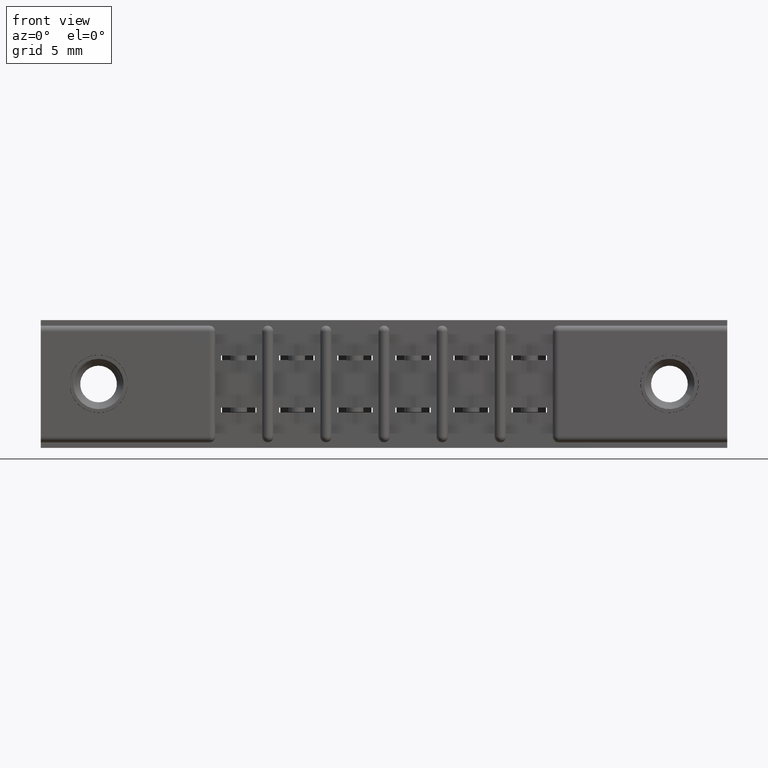
[diagram: clean part render]
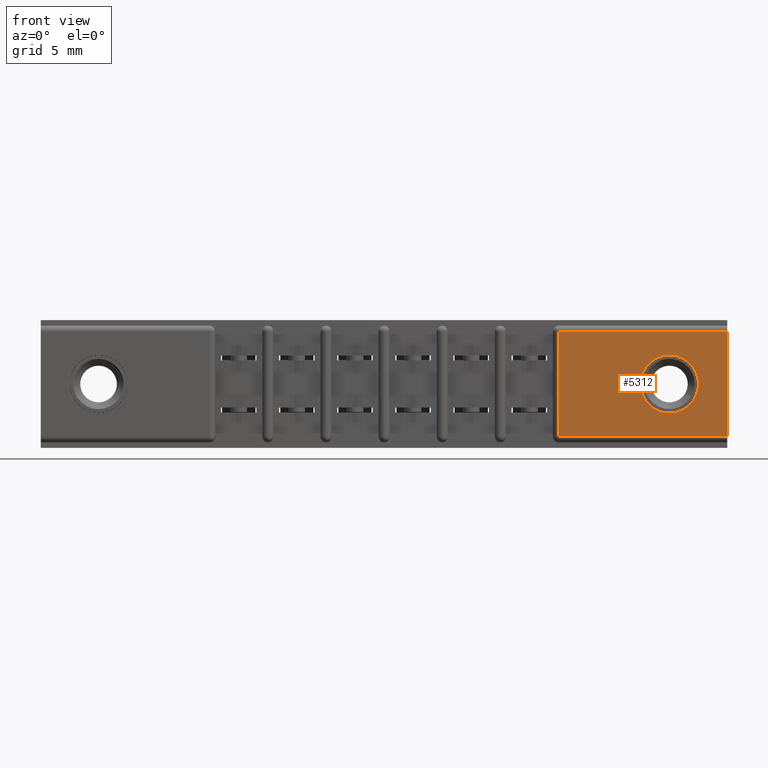
[diagram: same view with one face highlighted and labeled with its STEP entity id]
A machine part, front view. The second image highlights one B-rep face of the part: STEP entity #5312.
In plain terms, the highlighted planar face has unit normal (0, -1, 0).
Its self-contained STEP definition (entity closure, byte-faithful):
#385 = DIRECTION ( 'NONE',  ( 1.000000000000000000, -0.0000000000000000000, -0.0000000000000000000 ) ) ;
#571 = ORIENTED_EDGE ( 'NONE', *, *, #2978, .T. ) ;
#979 = VERTEX_POINT ( 'NONE', #6287 ) ;
#999 = VERTEX_POINT ( 'NONE', #1690 ) ;
#1211 = LINE ( 'NONE', #6277, #9576 ) ;
#1656 = DIRECTION ( 'NONE',  ( 0.0000000000000000000, -1.000000000000000000, 0.0000000000000000000 ) ) ;
#1690 = CARTESIAN_POINT ( 'NONE',  ( 1.842000000000000100, 0.0000000000000000000, -0.02999999999999995400 ) ) ;
#1831 = EDGE_CURVE ( 'NONE', #979, #2061, #9969, .T. ) ;
#2061 = VERTEX_POINT ( 'NONE', #5524 ) ;
#2095 = VERTEX_POINT ( 'NONE', #4521 ) ;
#2192 = DIRECTION ( 'NONE',  ( -0.0000000000000000000, -0.0000000000000000000, -1.000000000000000000 ) ) ;
#2204 = ORIENTED_EDGE ( 'NONE', *, *, #7379, .T. ) ;
#2345 = CIRCLE ( 'NONE', #7667, 0.07800000000000008300 ) ;
#2461 = DIRECTION ( 'NONE',  ( 0.0000000000000000000, -0.0000000000000000000, -1.000000000000000000 ) ) ;
#2978 = EDGE_CURVE ( 'NONE', #999, #2095, #5230, .T. ) ;
#3028 = CARTESIAN_POINT ( 'NONE',  ( 1.842000000000000100, 0.0000000000000000000, -0.3130000000000000600 ) ) ;
#3343 = PLANE ( 'NONE',  #9020 ) ;
#3535 = ORIENTED_EDGE ( 'NONE', *, *, #4927, .T. ) ;
#3564 = CARTESIAN_POINT ( 'NONE',  ( 1.842000000000000100, 0.0000000000000000000, -0.3130000000000000600 ) ) ;
#3936 = VERTEX_POINT ( 'NONE', #8347 ) ;
#4521 = CARTESIAN_POINT ( 'NONE',  ( 1.389000000000000200, 0.0000000000000000000, -0.02999999999999995400 ) ) ;
#4765 = VECTOR ( 'NONE', #385, 39.37007874015748100 ) ;
#4812 = VECTOR ( 'NONE', #5334, 39.37007874015748100 ) ;
#4927 = EDGE_CURVE ( 'NONE', #3936, #11648, #7492, .T. ) ;
#5230 = LINE ( 'NONE', #10839, #4812 ) ;
#5276 = VECTOR ( 'NONE', #2192, 39.37007874015748100 ) ;
#5312 = ADVANCED_FACE ( 'NONE', ( #5747, #8046 ), #3343, .T. ) ;
#5334 = DIRECTION ( 'NONE',  ( -1.000000000000000000, 0.0000000000000000000, 0.0000000000000000000 ) ) ;
#5524 = CARTESIAN_POINT ( 'NONE',  ( 1.687000000000000900, 0.0000000000000000000, -0.2495000000000001100 ) ) ;
#5747 = FACE_BOUND ( 'NONE', #6751, .T. ) ;
#6277 = CARTESIAN_POINT ( 'NONE',  ( 1.842000000000000100, 0.0000000000000000000, 0.0000000000000000000 ) ) ;
#6287 = CARTESIAN_POINT ( 'NONE',  ( 1.687000000000000900, 0.0000000000000000000, -0.09349999999999991700 ) ) ;
#6751 = EDGE_LOOP ( 'NONE', ( #11199, #8594 ) ) ;
#6853 = LINE ( 'NONE', #7710, #5276 ) ;
#7280 = EDGE_LOOP ( 'NONE', ( #571, #2204, #3535, #9746 ) ) ;
#7379 = EDGE_CURVE ( 'NONE', #2095, #3936, #6853, .T. ) ;
#7492 = LINE ( 'NONE', #3028, #4765 ) ;
#7667 = AXIS2_PLACEMENT_3D ( 'NONE', #8498, #9512, #8459 ) ;
#7700 = DIRECTION ( 'NONE',  ( 0.0000000000000000000, -1.000000000000000000, 0.0000000000000000000 ) ) ;
#7710 = CARTESIAN_POINT ( 'NONE',  ( 1.389000000000000200, 0.0000000000000000000, -0.3130000000000000600 ) ) ;
#7975 = CARTESIAN_POINT ( 'NONE',  ( 0.0000000000000000000, 0.0000000000000000000, -0.3430000000000000300 ) ) ;
#8034 = DIRECTION ( 'NONE',  ( 0.0000000000000000000, 0.0000000000000000000, -1.000000000000000000 ) ) ;
#8046 = FACE_OUTER_BOUND ( 'NONE', #7280, .T. ) ;
#8347 = CARTESIAN_POINT ( 'NONE',  ( 1.389000000000000200, 0.0000000000000000000, -0.3130000000000000600 ) ) ;
#8459 = DIRECTION ( 'NONE',  ( 0.0000000000000000000, 0.0000000000000000000, 1.000000000000000000 ) ) ;
#8498 = CARTESIAN_POINT ( 'NONE',  ( 1.687000000000000900, 0.0000000000000000000, -0.1715000000000000100 ) ) ;
#8594 = ORIENTED_EDGE ( 'NONE', *, *, #1831, .F. ) ;
#8623 = CARTESIAN_POINT ( 'NONE',  ( 1.687000000000000900, 0.0000000000000000000, -0.1715000000000000100 ) ) ;
#9020 = AXIS2_PLACEMENT_3D ( 'NONE', #7975, #1656, #2461 ) ;
#9512 = DIRECTION ( 'NONE',  ( 0.0000000000000000000, -1.000000000000000000, 0.0000000000000000000 ) ) ;
#9557 = DIRECTION ( 'NONE',  ( 0.0000000000000000000, 0.0000000000000000000, 1.000000000000000000 ) ) ;
#9576 = VECTOR ( 'NONE', #8034, 39.37007874015748100 ) ;
#9746 = ORIENTED_EDGE ( 'NONE', *, *, #10380, .F. ) ;
#9969 = CIRCLE ( 'NONE', #11489, 0.07800000000000008300 ) ;
#10380 = EDGE_CURVE ( 'NONE', #999, #11648, #1211, .T. ) ;
#10839 = CARTESIAN_POINT ( 'NONE',  ( 0.0000000000000000000, 0.0000000000000000000, -0.02999999999999995400 ) ) ;
#11194 = EDGE_CURVE ( 'NONE', #2061, #979, #2345, .T. ) ;
#11199 = ORIENTED_EDGE ( 'NONE', *, *, #11194, .F. ) ;
#11489 = AXIS2_PLACEMENT_3D ( 'NONE', #8623, #7700, #9557 ) ;
#11648 = VERTEX_POINT ( 'NONE', #3564 ) ;